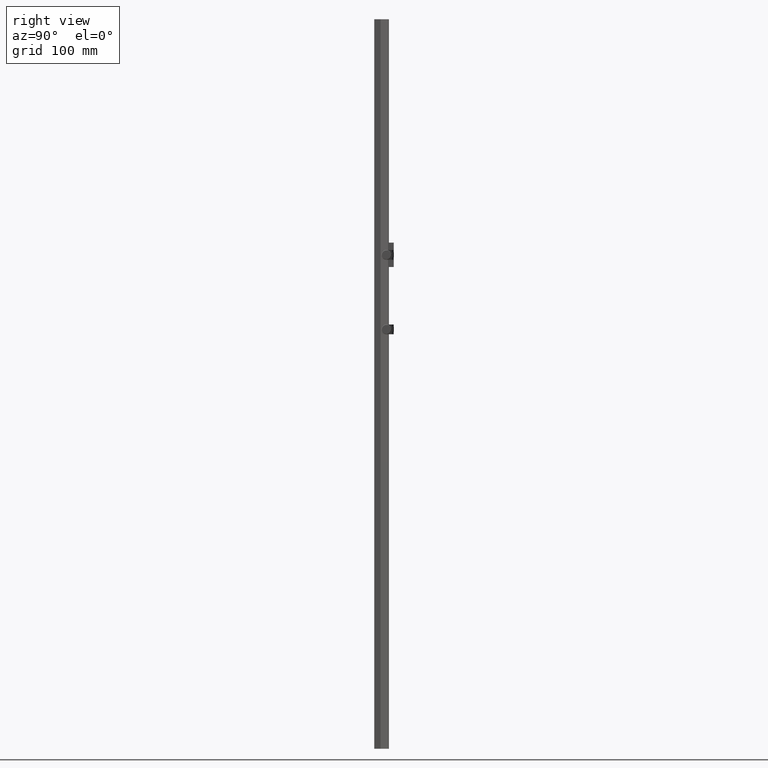
[diagram: clean part render]
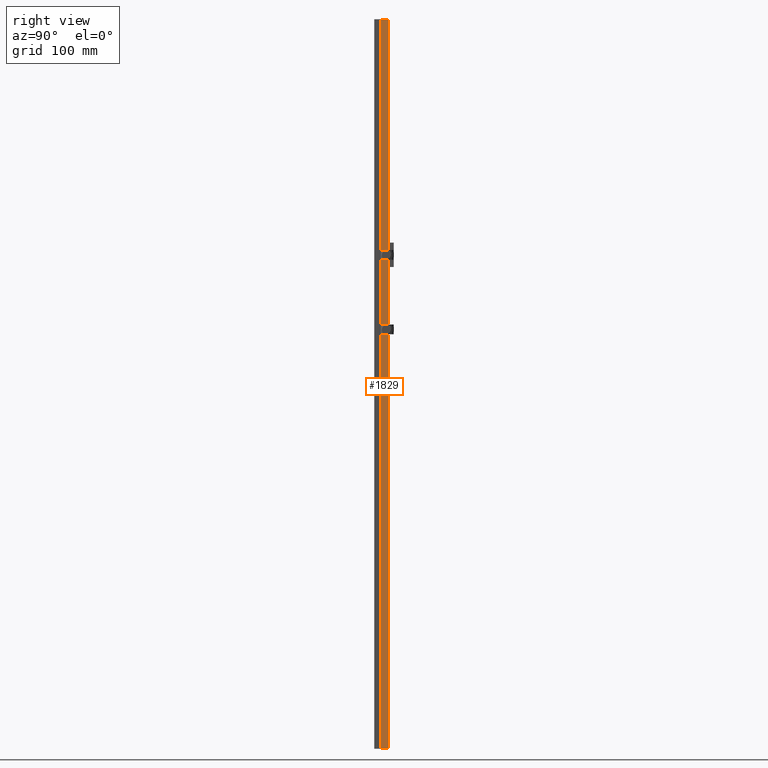
[diagram: same view with one face highlighted and labeled with its STEP entity id]
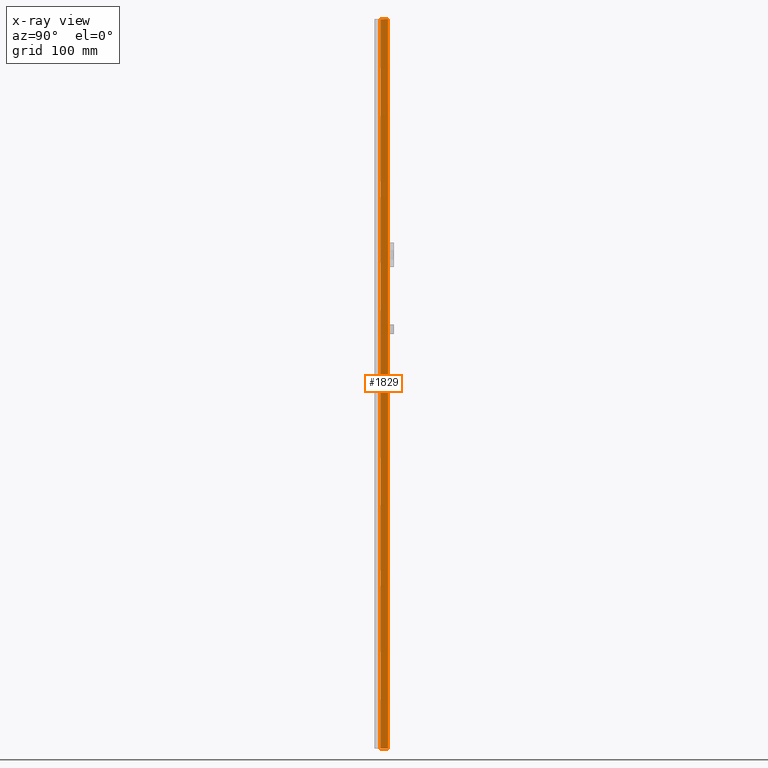
[diagram: x-ray of the same camera — body ghosted, the highlighted face saturated]
A machine part, right view. The second image highlights one B-rep face of the part: STEP entity #1829.
The next image is the same camera in x-ray: the body ghosted, the highlighted face saturated — about 0% of this face is hidden behind the body in this view.
In plain terms, the highlighted planar face has unit normal (-0.866, 0.5, 0).
Its self-contained STEP definition (entity closure, byte-faithful):
#159 = CARTESIAN_POINT ( 'NONE',  ( 14.99999999999999822, 375.0000000000000000, -7.633974596215571395 ) ) ;
#360 = EDGE_CURVE ( 'NONE', #2333, #3474, #808, .T. ) ;
#580 = DIRECTION ( 'NONE',  ( 0.5000000000000038858, 0.000000000000000000, -0.8660254037844363761 ) ) ;
#664 = LINE ( 'NONE', #6119, #5514 ) ;
#808 = LINE ( 'NONE', #4432, #7310 ) ;
#1829 = ADVANCED_FACE ( 'NONE', ( #4079 ), #7209, .F. ) ;
#2333 = VERTEX_POINT ( 'NONE', #4110 ) ;
#2570 = LINE ( 'NONE', #159, #4080 ) ;
#2846 = ORIENTED_EDGE ( 'NONE', *, *, #3895, .T. ) ;
#2938 = CARTESIAN_POINT ( 'NONE',  ( 10.59252271188812777, 375.0000000000000000, -2.594419806801887381E-15 ) ) ;
#3137 = CARTESIAN_POINT ( 'NONE',  ( 14.99999999999999822, 375.0000000000000000, -7.633974596215576724 ) ) ;
#3202 = LINE ( 'NONE', #3802, #4341 ) ;
#3474 = VERTEX_POINT ( 'NONE', #5979 ) ;
#3802 = CARTESIAN_POINT ( 'NONE',  ( 10.59252271188812777, 375.0000000000000000, -2.594419806801887381E-15 ) ) ;
#3895 = EDGE_CURVE ( 'NONE', #3474, #7732, #2570, .T. ) ;
#4079 = FACE_OUTER_BOUND ( 'NONE', #5150, .T. ) ;
#4080 = VECTOR ( 'NONE', #7510, 1000.000000000000000 ) ;
#4110 = CARTESIAN_POINT ( 'NONE',  ( 10.59252271188812777, -375.0000000000000000, -2.594419806801887381E-15 ) ) ;
#4341 = VECTOR ( 'NONE', #6370, 1000.000000000000000 ) ;
#4350 = EDGE_CURVE ( 'NONE', #6240, #2333, #3202, .T. ) ;
#4432 = CARTESIAN_POINT ( 'NONE',  ( 10.59252271188812777, -375.0000000000000000, -2.594419806801887381E-15 ) ) ;
#4768 = DIRECTION ( 'NONE',  ( -0.5000000000000038858, 0.000000000000000000, 0.8660254037844363761 ) ) ;
#4802 = AXIS2_PLACEMENT_3D ( 'NONE', #2938, #5462, #4768 ) ;
#5150 = EDGE_LOOP ( 'NONE', ( #5831, #2846, #6854, #7264 ) ) ;
#5462 = DIRECTION ( 'NONE',  ( -0.8660254037844363761, 0.000000000000000000, -0.5000000000000038858 ) ) ;
#5514 = VECTOR ( 'NONE', #580, 1000.000000000000114 ) ;
#5522 = CARTESIAN_POINT ( 'NONE',  ( 10.59252271188812777, 375.0000000000000000, -2.594419806801887381E-15 ) ) ;
#5823 = EDGE_CURVE ( 'NONE', #6240, #7732, #664, .T. ) ;
#5831 = ORIENTED_EDGE ( 'NONE', *, *, #360, .T. ) ;
#5979 = CARTESIAN_POINT ( 'NONE',  ( 15.00000000000000000, -375.0000000000000000, -7.633974596215576724 ) ) ;
#6119 = CARTESIAN_POINT ( 'NONE',  ( 10.59252271188812777, 375.0000000000000000, -2.594419806801887381E-15 ) ) ;
#6240 = VERTEX_POINT ( 'NONE', #5522 ) ;
#6370 = DIRECTION ( 'NONE',  ( -0.000000000000000000, -1.000000000000000000, -0.000000000000000000 ) ) ;
#6854 = ORIENTED_EDGE ( 'NONE', *, *, #5823, .F. ) ;
#6904 = DIRECTION ( 'NONE',  ( 0.5000000000000038858, 0.000000000000000000, -0.8660254037844363761 ) ) ;
#7209 = PLANE ( 'NONE',  #4802 ) ;
#7264 = ORIENTED_EDGE ( 'NONE', *, *, #4350, .T. ) ;
#7310 = VECTOR ( 'NONE', #6904, 1000.000000000000114 ) ;
#7510 = DIRECTION ( 'NONE',  ( 0.000000000000000000, 1.000000000000000000, 0.000000000000000000 ) ) ;
#7732 = VERTEX_POINT ( 'NONE', #3137 ) ;